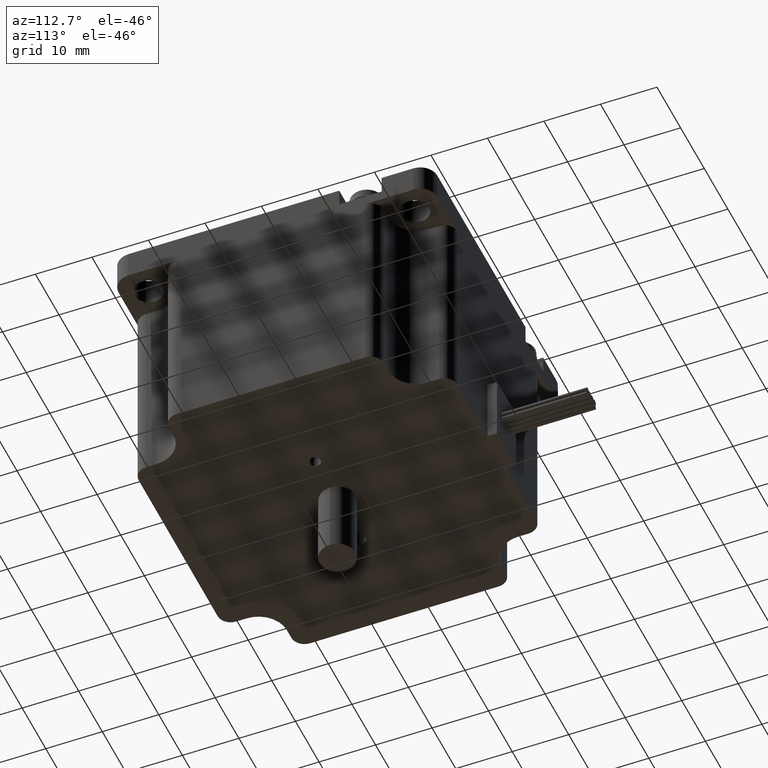
[diagram: clean part render]
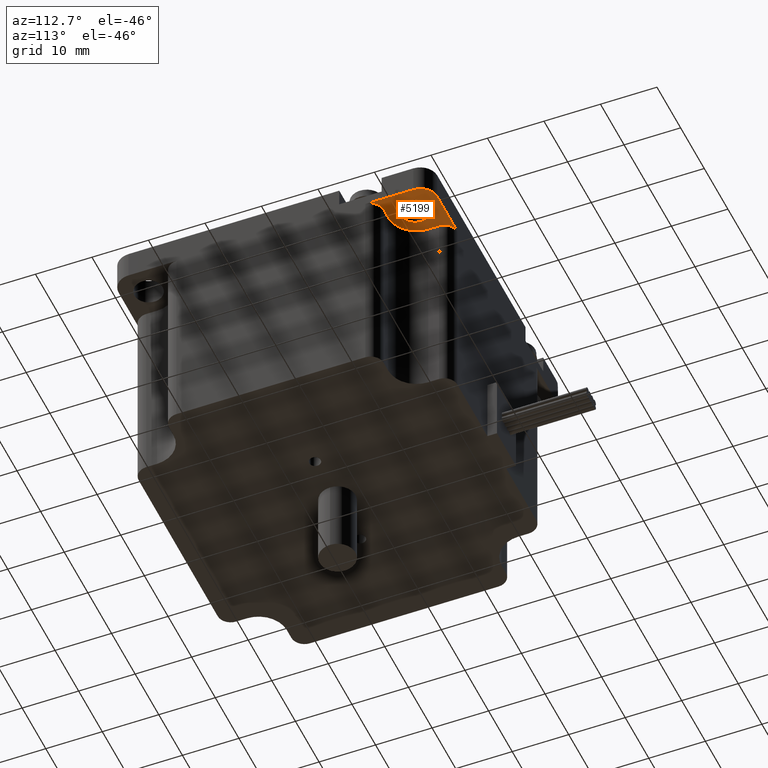
[diagram: same view with one face highlighted and labeled with its STEP entity id]
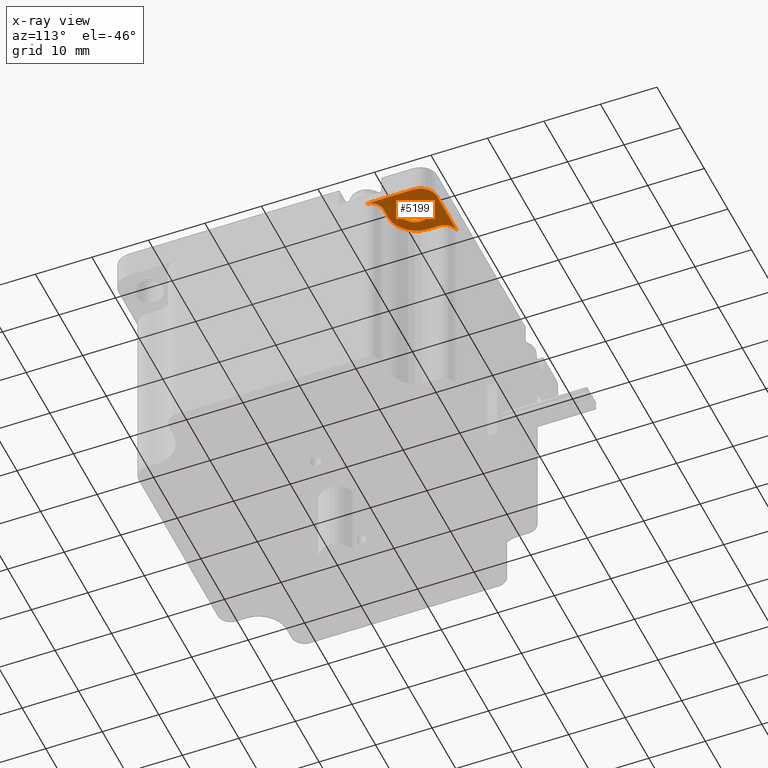
[diagram: x-ray of the same camera — body ghosted, the highlighted face saturated]
A machine part, auxiliary view. The second image highlights one B-rep face of the part: STEP entity #5199.
The next image is the same camera in x-ray: the body ghosted, the highlighted face saturated — about 0% of this face is hidden behind the body in this view.
In plain terms, the highlighted planar face has unit normal (0, 0, 1).
Its self-contained STEP definition (entity closure, byte-faithful):
#243=LINE('',#8003,#609);
#251=LINE('',#8021,#617);
#270=LINE('',#8085,#636);
#271=LINE('',#8089,#637);
#609=VECTOR('',#6338,10.);
#617=VECTOR('',#6356,10.);
#636=VECTOR('',#6437,10.);
#637=VECTOR('',#6442,10.);
#931=PLANE('',#5592);
#1088=FACE_BOUND('',#1529,.T.);
#1187=FACE_OUTER_BOUND('',#1528,.T.);
#1528=EDGE_LOOP('',(#3685,#3686,#3687,#3688,#3689,#3690,#3691,#3692));
#1529=EDGE_LOOP('',(#3693));
#1889=CIRCLE('',#5557,2.3);
#1890=CIRCLE('',#5559,2.3);
#1902=CIRCLE('',#5590,5.);
#1903=CIRCLE('',#5593,3.);
#1904=CIRCLE('',#5594,2.5);
#2241=VERTEX_POINT('',#8000);
#2242=VERTEX_POINT('',#8002);
#2244=VERTEX_POINT('',#8009);
#2245=VERTEX_POINT('',#8013);
#2246=VERTEX_POINT('',#8015);
#2247=VERTEX_POINT('',#8019);
#2261=VERTEX_POINT('',#8081);
#2262=VERTEX_POINT('',#8087);
#2263=VERTEX_POINT('',#8090);
#2771=EDGE_CURVE('',#2242,#2241,#243,.T.);
#2775=EDGE_CURVE('',#2242,#2244,#1889,.F.);
#2778=EDGE_CURVE('',#2245,#2246,#1890,.F.);
#2781=EDGE_CURVE('',#2245,#2247,#251,.T.);
#2810=EDGE_CURVE('',#2247,#2261,#1902,.T.);
#2812=EDGE_CURVE('',#2261,#2244,#270,.T.);
#2813=EDGE_CURVE('',#2262,#2241,#1903,.T.);
#2814=EDGE_CURVE('',#2262,#2246,#271,.T.);
#2815=EDGE_CURVE('',#2263,#2263,#1904,.T.);
#3685=ORIENTED_EDGE('',*,*,#2813,.F.);
#3686=ORIENTED_EDGE('',*,*,#2814,.T.);
#3687=ORIENTED_EDGE('',*,*,#2778,.F.);
#3688=ORIENTED_EDGE('',*,*,#2781,.T.);
#3689=ORIENTED_EDGE('',*,*,#2810,.T.);
#3690=ORIENTED_EDGE('',*,*,#2812,.T.);
#3691=ORIENTED_EDGE('',*,*,#2775,.F.);
#3692=ORIENTED_EDGE('',*,*,#2771,.T.);
#3693=ORIENTED_EDGE('',*,*,#2815,.F.);
#5199=ADVANCED_FACE('',(#1187,#1088),#931,.F.);
#5557=AXIS2_PLACEMENT_3D('',#8010,#6344,#6345);
#5559=AXIS2_PLACEMENT_3D('',#8016,#6350,#6351);
#5590=AXIS2_PLACEMENT_3D('',#8082,#6432,#6433);
#5592=AXIS2_PLACEMENT_3D('',#8086,#6438,#6439);
#5593=AXIS2_PLACEMENT_3D('',#8088,#6440,#6441);
#5594=AXIS2_PLACEMENT_3D('',#8091,#6443,#6444);
#6338=DIRECTION('',(1.,0.,0.));
#6344=DIRECTION('center_axis',(0.,0.,1.));
#6345=DIRECTION('ref_axis',(0.707106781186548,0.707106781186547,0.));
#6350=DIRECTION('center_axis',(0.,0.,1.));
#6351=DIRECTION('ref_axis',(0.707106781186548,0.707106781186547,0.));
#6356=DIRECTION('',(-1.,2.11471052309554E-15,0.));
#6432=DIRECTION('center_axis',(0.,0.,-1.));
#6433=DIRECTION('ref_axis',(0.,1.,0.));
#6437=DIRECTION('',(3.1720657846433E-15,1.,0.));
#6438=DIRECTION('center_axis',(0.,0.,1.));
#6439=DIRECTION('ref_axis',(1.,0.,0.));
#6440=DIRECTION('center_axis',(0.,0.,1.));
#6441=DIRECTION('ref_axis',(0.707106781186547,0.707106781186547,0.));
#6442=DIRECTION('',(0.,-1.,0.));
#6443=DIRECTION('center_axis',(0.,0.,-1.));
#6444=DIRECTION('ref_axis',(1.,0.,0.));
#8000=CARTESIAN_POINT('',(25.2,28.2,-0.299999994933604));
#8002=CARTESIAN_POINT('',(16.7,28.2,-0.299999994933604));
#8003=CARTESIAN_POINT('',(-2.21872829968027,28.2,-0.299999994933604));
#8009=CARTESIAN_POINT('',(19.,25.9,-0.299999994933604));
#8010=CARTESIAN_POINT('Origin',(16.7,25.9,-0.299999994933604));
#8013=CARTESIAN_POINT('',(25.9,19.,-0.299999994933604));
#8015=CARTESIAN_POINT('',(28.2,16.7,-0.299999994933604));
#8016=CARTESIAN_POINT('Origin',(25.9,16.7,-0.299999994933604));
#8019=CARTESIAN_POINT('',(24.,19.,-0.299999994933604));
#8021=CARTESIAN_POINT('',(24.,19.,-0.299999994933604));
#8081=CARTESIAN_POINT('',(19.,24.,-0.299999994933604));
#8082=CARTESIAN_POINT('Origin',(24.,24.,-0.299999994933604));
#8085=CARTESIAN_POINT('',(19.,28.2,-0.299999994933604));
#8086=CARTESIAN_POINT('Origin',(23.7625434006395,23.7625434006395,-0.299999994933604));
#8087=CARTESIAN_POINT('',(28.2,25.2,-0.299999994933604));
#8088=CARTESIAN_POINT('Origin',(25.2,25.2,-0.299999994933604));
#8089=CARTESIAN_POINT('',(28.2,25.9812717003197,-0.299999994933604));
#8090=CARTESIAN_POINT('',(21.07,23.57,-0.299999994933604));
#8091=CARTESIAN_POINT('Origin',(23.57,23.57,-0.299999994933609));